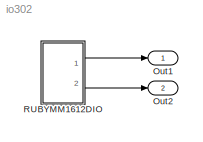
MODEL io302
KIND model
BLOCK [Outport] Out1
  IconDisplay = Port number
BLOCK [Outport] Out2
  IconDisplay = Port number
  Port = 2
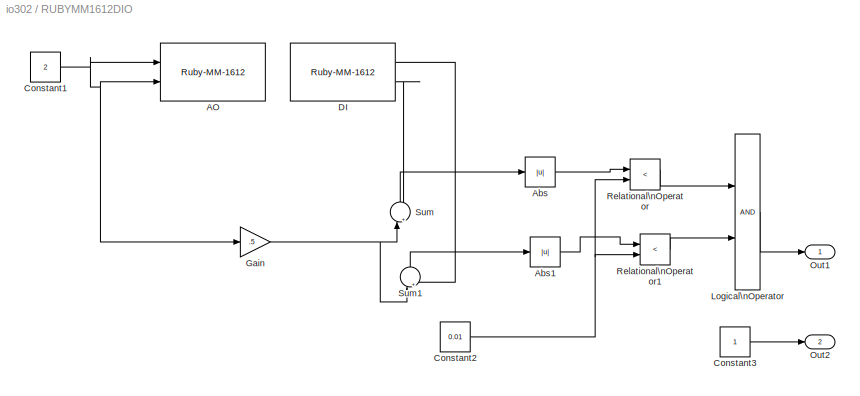
BLOCK [SubSystem] RUBYMM1612DIO
  MinAlgLoopOccurrences = off
  Ports = [0, 2]
  PropExecContextAcrossSSBoundary = on
  RTWSystemCode = Auto
  TreatAsAtomicUnit = off
BLOCK [Reference] RUBYMM1612DIO/AO  REF=xpcdiamondlib/D//A/Ruby-MM-1612 
  Ports = [2]
  SourceBlock = xpcdiamondlib/D//A/Ruby-MM-1612
  SourceType = dadsrubymm1612
  base = 0x300
  channel = [2,4]
  initValue = [0]
  range1 = -10V to 10V
  range2 = -10V to 10V
  reset = [1]
  sampleTime = .001
BLOCK [Abs] RUBYMM1612DIO/Abs
BLOCK [Abs] RUBYMM1612DIO/Abs1
BLOCK [Constant] RUBYMM1612DIO/Constant1
  Value = 2
BLOCK [Constant] RUBYMM1612DIO/Constant2
  Value = 0.01
BLOCK [Constant] RUBYMM1612DIO/Constant3
BLOCK [Reference] RUBYMM1612DIO/DI  REF=xpcdiamondlib/Digital\nInput/Ruby-MM-1612 
  Ports = [0, 2]
  SourceBlock = xpcdiamondlib/Digital\nInput/Ruby-MM-1612
  SourceType = didsrubymm1612
  baseaddress = 0x300
  channel = [3,5]
  chip = 1
  port = C
  sampletime = .001
BLOCK [Gain] RUBYMM1612DIO/Gain
  Gain = .5
BLOCK [Logic] RUBYMM1612DIO/Logical\nOperator
  AllPortsSameDT = off
  Ports = [2, 1]
BLOCK [Outport] RUBYMM1612DIO/Out1
  IconDisplay = Port number
BLOCK [Outport] RUBYMM1612DIO/Out2
  IconDisplay = Port number
  Port = 2
BLOCK [RelationalOperator] RUBYMM1612DIO/Relational\nOperator
  InputSameDT = off
  Operator = <
BLOCK [RelationalOperator] RUBYMM1612DIO/Relational\nOperator1
  InputSameDT = off
  Operator = <
BLOCK [Sum] RUBYMM1612DIO/Sum
  IconShape = round
  InputSameDT = off
  Inputs = |+-
  OutDataTypeMode = Inherit via internal rule
  Ports = [2, 1]
BLOCK [Sum] RUBYMM1612DIO/Sum1
  IconShape = round
  InputSameDT = off
  Inputs = |+-
  OutDataTypeMode = Inherit via internal rule
  Ports = [2, 1]
LINE RUBYMM1612DIO/Abs1:1 -> RUBYMM1612DIO/Relational\nOperator1:1
LINE RUBYMM1612DIO/Abs:1 -> RUBYMM1612DIO/Relational\nOperator:1
NET RUBYMM1612DIO/Constant1:1 -> RUBYMM1612DIO/AO:1, RUBYMM1612DIO/AO:2, RUBYMM1612DIO/Gain:1
NET RUBYMM1612DIO/Constant2:1 -> RUBYMM1612DIO/Relational\nOperator1:2, RUBYMM1612DIO/Relational\nOperator:2
LINE RUBYMM1612DIO/Constant3:1 -> RUBYMM1612DIO/Out2:1
LINE RUBYMM1612DIO/DI:1 -> RUBYMM1612DIO/Sum1:2
LINE RUBYMM1612DIO/DI:2 -> RUBYMM1612DIO/Sum:2
NET RUBYMM1612DIO/Gain:1 -> RUBYMM1612DIO/Sum1:1, RUBYMM1612DIO/Sum:1
LINE RUBYMM1612DIO/Logical\nOperator:1 -> RUBYMM1612DIO/Out1:1
LINE RUBYMM1612DIO/Relational\nOperator1:1 -> RUBYMM1612DIO/Logical\nOperator:2
LINE RUBYMM1612DIO/Relational\nOperator:1 -> RUBYMM1612DIO/Logical\nOperator:1
LINE RUBYMM1612DIO/Sum1:1 -> RUBYMM1612DIO/Abs1:1
LINE RUBYMM1612DIO/Sum:1 -> RUBYMM1612DIO/Abs:1
LINE RUBYMM1612DIO:1 -> Out1:1
LINE RUBYMM1612DIO:2 -> Out2:1
note: NET lines group one-source signal fan-out (src -> all destinations, sorted); 1:1 wires keep LINE
